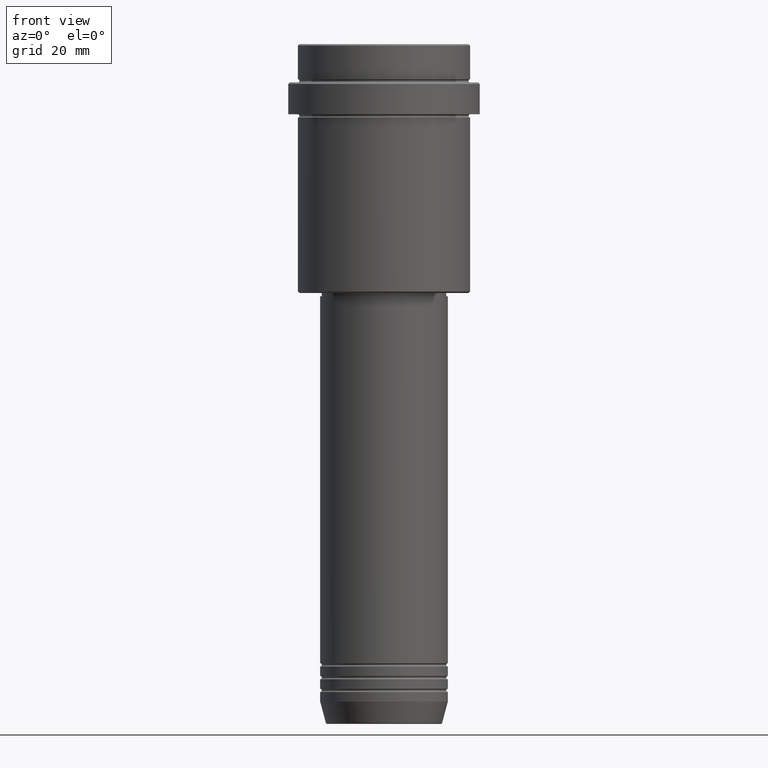
[diagram: clean part render]
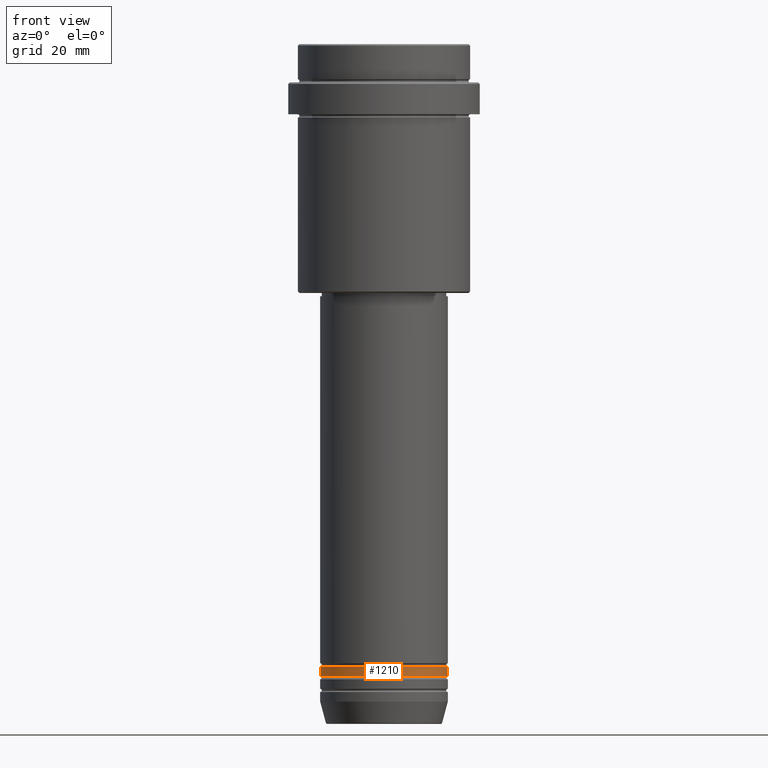
[diagram: same view with one face highlighted and labeled with its STEP entity id]
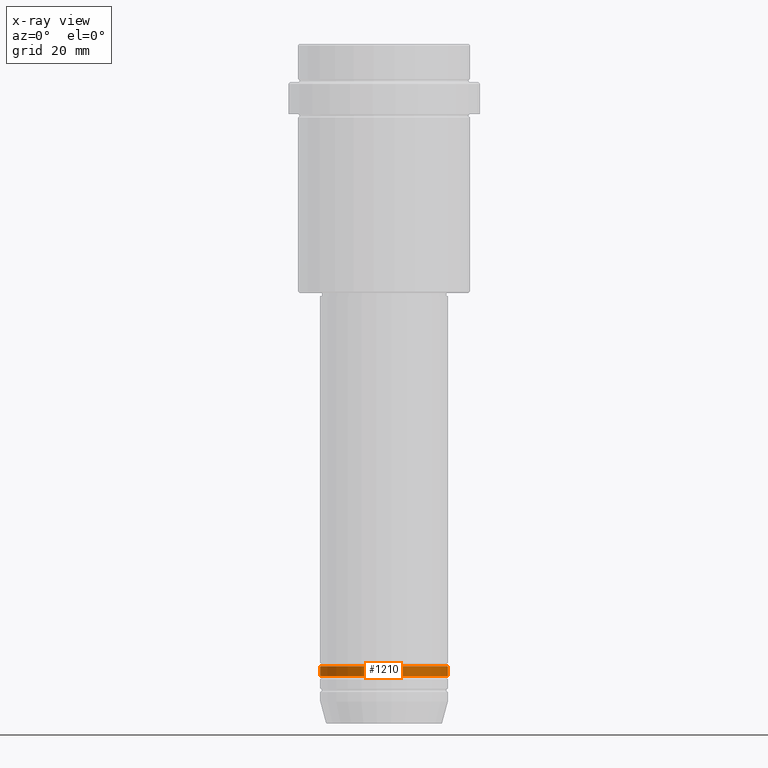
[diagram: x-ray of the same camera — body ghosted, the highlighted face saturated]
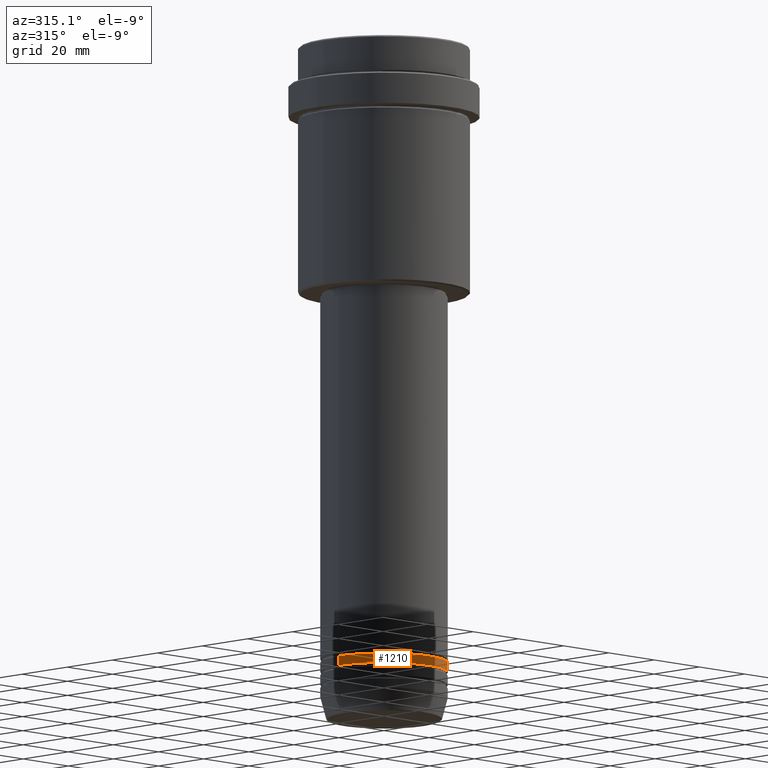
[diagram: same view with one face highlighted and labeled with its STEP entity id]
A machine part, front view. The second image highlights one B-rep face of the part: STEP entity #1210.
The next image is the same camera in x-ray: the body ghosted, the highlighted face saturated — about 0% of this face is hidden behind the body in this view.
A second angle (auxiliary view) of the same face is appended — the face is thin or edge-on in the first view.
In plain terms, the highlighted cylindrical surface (partial cylindrical patch) has radius 20 mm, axis along (-0, -0, 1).
Its self-contained STEP definition (entity closure, byte-faithful):
#10 = CIRCLE ( 'NONE', #1239, 20.00000000000000000 ) ;
#17 = CARTESIAN_POINT ( 'NONE',  ( 0.000000000000000000, 0.000000000000000000, -197.9999999999998863 ) ) ;
#56 = AXIS2_PLACEMENT_3D ( 'NONE', #1075, #214, #840 ) ;
#110 = EDGE_CURVE ( 'NONE', #213, #817, #10, .T. ) ;
#116 = CYLINDRICAL_SURFACE ( 'NONE', #482, 20.00000000000000000 ) ;
#181 = ORIENTED_EDGE ( 'NONE', *, *, #110, .T. ) ;
#213 = VERTEX_POINT ( 'NONE', #662 ) ;
#214 = DIRECTION ( 'NONE',  ( -0.000000000000000000, -0.000000000000000000, 1.000000000000000000 ) ) ;
#270 = CARTESIAN_POINT ( 'NONE',  ( -20.00000000000000000, 2.449293598294706513E-15, 0.000000000000000000 ) ) ;
#281 = ORIENTED_EDGE ( 'NONE', *, *, #461, .F. ) ;
#307 = EDGE_LOOP ( 'NONE', ( #435, #181, #734, #281 ) ) ;
#330 = LINE ( 'NONE', #728, #1200 ) ;
#352 = DIRECTION ( 'NONE',  ( 1.000000000000000000, 0.000000000000000000, 0.000000000000000000 ) ) ;
#431 = DIRECTION ( 'NONE',  ( -0.000000000000000000, -0.000000000000000000, 1.000000000000000000 ) ) ;
#435 = ORIENTED_EDGE ( 'NONE', *, *, #1276, .F. ) ;
#450 = DIRECTION ( 'NONE',  ( 1.000000000000000000, 0.000000000000000000, 0.000000000000000000 ) ) ;
#461 = EDGE_CURVE ( 'NONE', #1218, #778, #519, .T. ) ;
#482 = AXIS2_PLACEMENT_3D ( 'NONE', #1104, #781, #352 ) ;
#519 = CIRCLE ( 'NONE', #56, 20.00000000000000000 ) ;
#535 = DIRECTION ( 'NONE',  ( -0.000000000000000000, -0.000000000000000000, 1.000000000000000000 ) ) ;
#638 = CARTESIAN_POINT ( 'NONE',  ( 20.00000000000000000, 0.000000000000000000, -194.9999999999998863 ) ) ;
#662 = CARTESIAN_POINT ( 'NONE',  ( -20.00000000000000000, 2.449293598294706513E-15, -197.9999999999998863 ) ) ;
#709 = DIRECTION ( 'NONE',  ( -0.000000000000000000, -0.000000000000000000, 1.000000000000000000 ) ) ;
#728 = CARTESIAN_POINT ( 'NONE',  ( 20.00000000000000000, 0.000000000000000000, 0.000000000000000000 ) ) ;
#734 = ORIENTED_EDGE ( 'NONE', *, *, #804, .T. ) ;
#778 = VERTEX_POINT ( 'NONE', #638 ) ;
#781 = DIRECTION ( 'NONE',  ( -0.000000000000000000, -0.000000000000000000, 1.000000000000000000 ) ) ;
#804 = EDGE_CURVE ( 'NONE', #817, #778, #330, .T. ) ;
#817 = VERTEX_POINT ( 'NONE', #962 ) ;
#840 = DIRECTION ( 'NONE',  ( 1.000000000000000000, 0.000000000000000000, 0.000000000000000000 ) ) ;
#882 = CARTESIAN_POINT ( 'NONE',  ( -20.00000000000000000, 2.449293598294706513E-15, -194.9999999999998863 ) ) ;
#962 = CARTESIAN_POINT ( 'NONE',  ( 20.00000000000000000, 0.000000000000000000, -197.9999999999998863 ) ) ;
#1075 = CARTESIAN_POINT ( 'NONE',  ( 0.000000000000000000, 0.000000000000000000, -194.9999999999998863 ) ) ;
#1087 = FACE_OUTER_BOUND ( 'NONE', #307, .T. ) ;
#1104 = CARTESIAN_POINT ( 'NONE',  ( 0.000000000000000000, 0.000000000000000000, 0.000000000000000000 ) ) ;
#1111 = VECTOR ( 'NONE', #709, 1000.000000000000000 ) ;
#1200 = VECTOR ( 'NONE', #535, 1000.000000000000000 ) ;
#1210 = ADVANCED_FACE ( 'NONE', ( #1087 ), #116, .T. ) ;
#1218 = VERTEX_POINT ( 'NONE', #882 ) ;
#1239 = AXIS2_PLACEMENT_3D ( 'NONE', #17, #431, #450 ) ;
#1276 = EDGE_CURVE ( 'NONE', #213, #1218, #1347, .T. ) ;
#1347 = LINE ( 'NONE', #270, #1111 ) ;